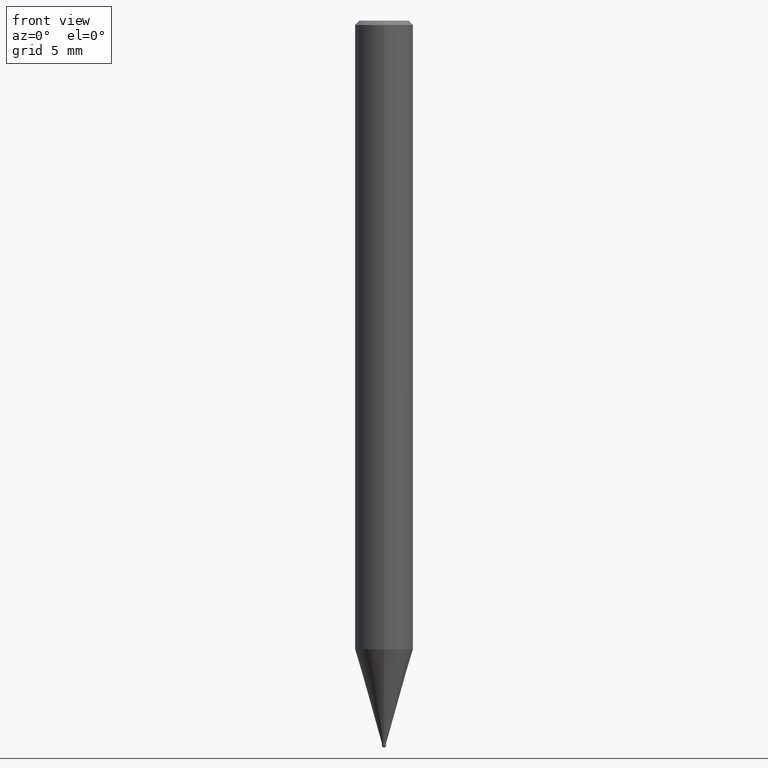
[diagram: clean part render]
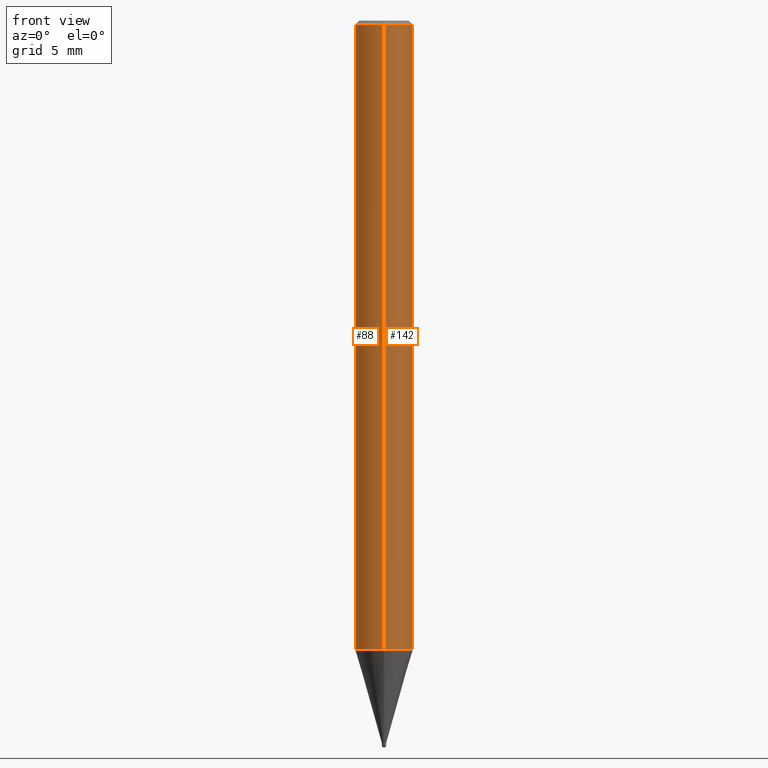
[diagram: same view with one multi-face feature highlighted, each face labeled with its STEP entity id]
A machine part, front view. The highlighted faces form ONE feature: a constant-radius fillet chain: 2 tangent blend faces with common blend radius 2 mm. The faces share edges in the B-rep.
Their STEP definitions:
[1] entity #88 (Cylinder):
#88=ADVANCED_FACE('',(#214),#215,.T.);
#114=EDGE_CURVE('',#178,#122,#245,.T.);
#122=VERTEX_POINT('',#253);
#134=EDGE_CURVE('',#136,#150,#265,.T.);
#136=VERTEX_POINT('',#267);
#144=EDGE_CURVE('',#178,#136,#278,.T.);
#150=VERTEX_POINT('',#285);
#178=VERTEX_POINT('',#317);
#184=EDGE_CURVE('',#150,#122,#323,.T.);
#214=FACE_OUTER_BOUND('',#346,.T.);
#215=CYLINDRICAL_SURFACE('',#347,2.0);
#245=CIRCLE('',#384,2.0);
#253=CARTESIAN_POINT('',(0.0,2.0,-43.248));
#265=CIRCLE('',#411,2.0);
#267=CARTESIAN_POINT('',(2.44921270764475E-016,-2.0,-0.299999999999997));
#278=LINE('',#425,#426);
#285=CARTESIAN_POINT('',(0.0,2.0,-0.299999999999997));
#317=CARTESIAN_POINT('',(2.44921270764475E-016,-2.0,-43.248));
#323=LINE('',#483,#484);
#346=EDGE_LOOP('',(#502,#503,#504,#505));
#347=AXIS2_PLACEMENT_3D('',#506,#507,#508);
#384=AXIS2_PLACEMENT_3D('',#541,#542,#543);
#411=AXIS2_PLACEMENT_3D('',#557,#558,#559);
#425=CARTESIAN_POINT('',(2.44921270764475E-016,-2.0,-21.774));
#426=VECTOR('',#580,1.0);
#483=CARTESIAN_POINT('',(-2.44921270764475E-016,2.0,-21.774));
#484=VECTOR('',#637,1.0);
#502=ORIENTED_EDGE('',*,*,#184,.T.);
#503=ORIENTED_EDGE('',*,*,#114,.F.);
#504=ORIENTED_EDGE('',*,*,#144,.T.);
#505=ORIENTED_EDGE('',*,*,#134,.T.);
#506=CARTESIAN_POINT('',(0.0,0.0,-21.774));
#507=DIRECTION('',(-0.0,-0.0,1.0));
#508=DIRECTION('',(0.0,1.0,0.0));
#541=CARTESIAN_POINT('',(0.0,0.0,-43.248));
#542=DIRECTION('',(0.0,0.0,-1.0));
#543=DIRECTION('',(0.0,1.0,0.0));
#557=CARTESIAN_POINT('',(0.0,0.0,-0.299999999999997));
#558=DIRECTION('',(0.0,0.0,-1.0));
#559=DIRECTION('',(0.0,1.0,0.0));
#580=DIRECTION('',(-0.0,-0.0,1.0));
#637=DIRECTION('',(0.0,0.0,-1.0));
[2] entity #142 (Cylinder):
#122=VERTEX_POINT('',#253);
#136=VERTEX_POINT('',#267);
#142=ADVANCED_FACE('',(#275),#276,.T.);
#144=EDGE_CURVE('',#178,#136,#278,.T.);
#150=VERTEX_POINT('',#285);
#156=EDGE_CURVE('',#150,#136,#291,.T.);
#178=VERTEX_POINT('',#317);
#184=EDGE_CURVE('',#150,#122,#323,.T.);
#188=EDGE_CURVE('',#122,#178,#327,.T.);
#253=CARTESIAN_POINT('',(0.0,2.0,-43.248));
#267=CARTESIAN_POINT('',(2.44921270764475E-016,-2.0,-0.299999999999997));
#275=FACE_OUTER_BOUND('',#421,.T.);
#276=CYLINDRICAL_SURFACE('',#422,2.0);
#278=LINE('',#425,#426);
#285=CARTESIAN_POINT('',(0.0,2.0,-0.299999999999997));
#291=CIRCLE('',#443,2.0);
#317=CARTESIAN_POINT('',(2.44921270764475E-016,-2.0,-43.248));
#323=LINE('',#483,#484);
#327=CIRCLE('',#488,2.0);
#421=EDGE_LOOP('',(#573,#574,#575,#576));
#422=AXIS2_PLACEMENT_3D('',#577,#578,#579);
#425=CARTESIAN_POINT('',(2.44921270764475E-016,-2.0,-21.774));
#426=VECTOR('',#580,1.0);
#443=AXIS2_PLACEMENT_3D('',#593,#594,#595);
#483=CARTESIAN_POINT('',(-2.44921270764475E-016,2.0,-21.774));
#484=VECTOR('',#637,1.0);
#488=AXIS2_PLACEMENT_3D('',#639,#640,#641);
#573=ORIENTED_EDGE('',*,*,#184,.F.);
#574=ORIENTED_EDGE('',*,*,#156,.T.);
#575=ORIENTED_EDGE('',*,*,#144,.F.);
#576=ORIENTED_EDGE('',*,*,#188,.F.);
#577=CARTESIAN_POINT('',(0.0,0.0,-21.774));
#578=DIRECTION('',(-0.0,-0.0,1.0));
#579=DIRECTION('',(0.0,1.0,0.0));
#580=DIRECTION('',(-0.0,-0.0,1.0));
#593=CARTESIAN_POINT('',(0.0,0.0,-0.299999999999997));
#594=DIRECTION('',(0.0,0.0,-1.0));
#595=DIRECTION('',(0.0,1.0,0.0));
#637=DIRECTION('',(0.0,0.0,-1.0));
#639=CARTESIAN_POINT('',(0.0,0.0,-43.248));
#640=DIRECTION('',(0.0,0.0,-1.0));
#641=DIRECTION('',(0.0,1.0,0.0));